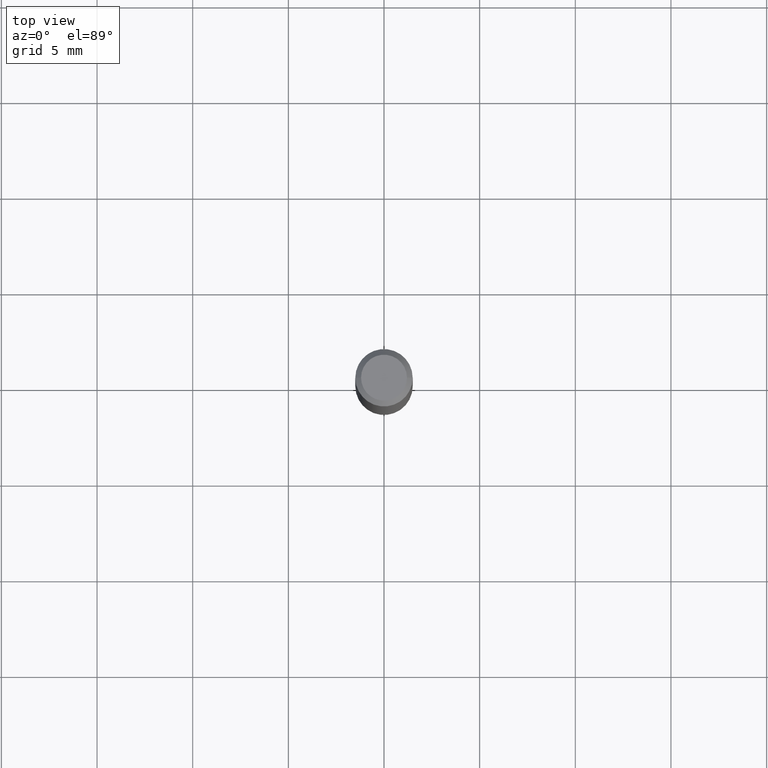
[diagram: clean part render]
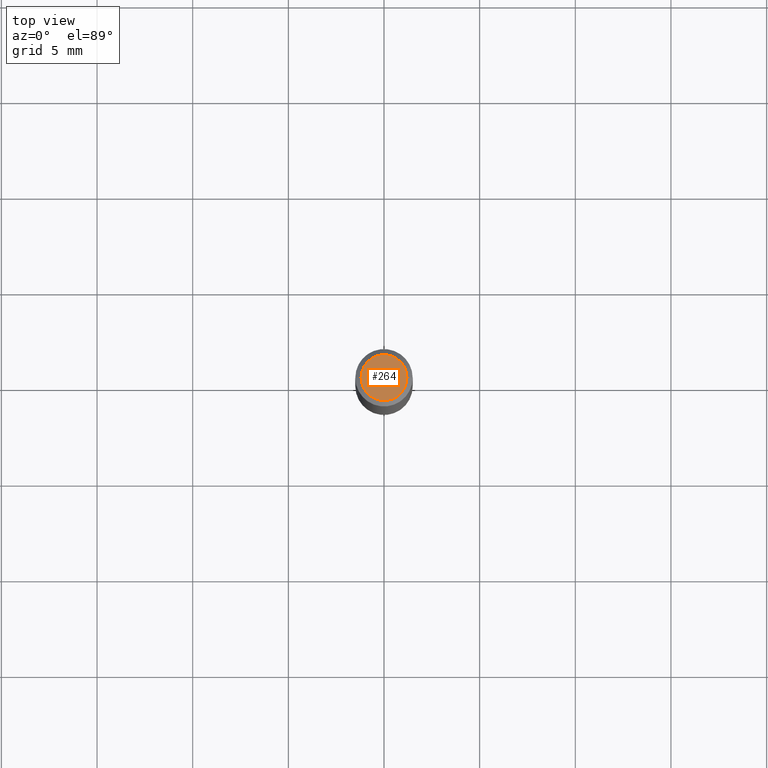
[diagram: same view with one face highlighted and labeled with its STEP entity id]
A machine part, top view. The second image highlights one B-rep face of the part: STEP entity #264.
In plain terms, the highlighted planar face has unit normal (0, -0, -1).
Its self-contained STEP definition (entity closure, byte-faithful):
#3 = EDGE_CURVE ( 'NONE', #328, #283, #195, .T. ) ;
#28 = CARTESIAN_POINT ( 'NONE',  ( 8.265746106709734507E-48, -1.180129479067563789E-33, -3.380025165646692144E-19 ) ) ;
#45 = AXIS2_PLACEMENT_3D ( 'NONE', #28, #320, #97 ) ;
#65 = CARTESIAN_POINT ( 'NONE',  ( 4.132873053354867254E-48, -5.900647395337818946E-34, -1.690012582823346072E-19 ) ) ;
#75 = CARTESIAN_POINT ( 'NONE',  ( 0.04724000000000000421, -3.852183633974369838E-16, -3.380025165621689721E-19 ) ) ;
#76 = AXIS2_PLACEMENT_3D ( 'NONE', #450, #111, #187 ) ;
#97 = DIRECTION ( 'NONE',  ( 1.000000000000000000, -6.982962677686266711E-15, 4.876185090822587894E-29 ) ) ;
#111 = DIRECTION ( 'NONE',  ( -2.445468806185136597E-29, 3.491481338843145583E-15, 1.000000000000000000 ) ) ;
#151 = AXIS2_PLACEMENT_3D ( 'NONE', #65, #211, #177 ) ;
#177 = DIRECTION ( 'NONE',  ( -1.000000000000000000, 6.982962677686265922E-15, -4.876176775795935793E-29 ) ) ;
#183 = CARTESIAN_POINT ( 'NONE',  ( -0.04724000000000000421, 3.504923541997677355E-16, -3.380025165670481712E-19 ) ) ;
#187 = DIRECTION ( 'NONE',  ( 1.000000000000000000, -6.982962677686266711E-15, 4.876185090822587894E-29 ) ) ;
#195 = CIRCLE ( 'NONE', #45, 0.04724000000000000421 ) ;
#211 = DIRECTION ( 'NONE',  ( 2.438088387897960049E-29, -3.491481338843145188E-15, -1.000000000000000000 ) ) ;
#254 = FACE_OUTER_BOUND ( 'NONE', #478, .T. ) ;
#264 = ADVANCED_FACE ( 'NONE', ( #254 ), #402, .F. ) ;
#283 = VERTEX_POINT ( 'NONE', #75 ) ;
#290 = ORIENTED_EDGE ( 'NONE', *, *, #380, .T. ) ;
#293 = CIRCLE ( 'NONE', #76, 0.04724000000000000421 ) ;
#320 = DIRECTION ( 'NONE',  ( -2.445468806185136597E-29, 3.491481338843145583E-15, 1.000000000000000000 ) ) ;
#328 = VERTEX_POINT ( 'NONE', #183 ) ;
#380 = EDGE_CURVE ( 'NONE', #283, #328, #293, .T. ) ;
#395 = ORIENTED_EDGE ( 'NONE', *, *, #3, .T. ) ;
#402 = PLANE ( 'NONE',  #151 ) ;
#450 = CARTESIAN_POINT ( 'NONE',  ( 8.265746106709734507E-48, -1.180129479067563789E-33, -3.380025165646692144E-19 ) ) ;
#478 = EDGE_LOOP ( 'NONE', ( #395, #290 ) ) ;